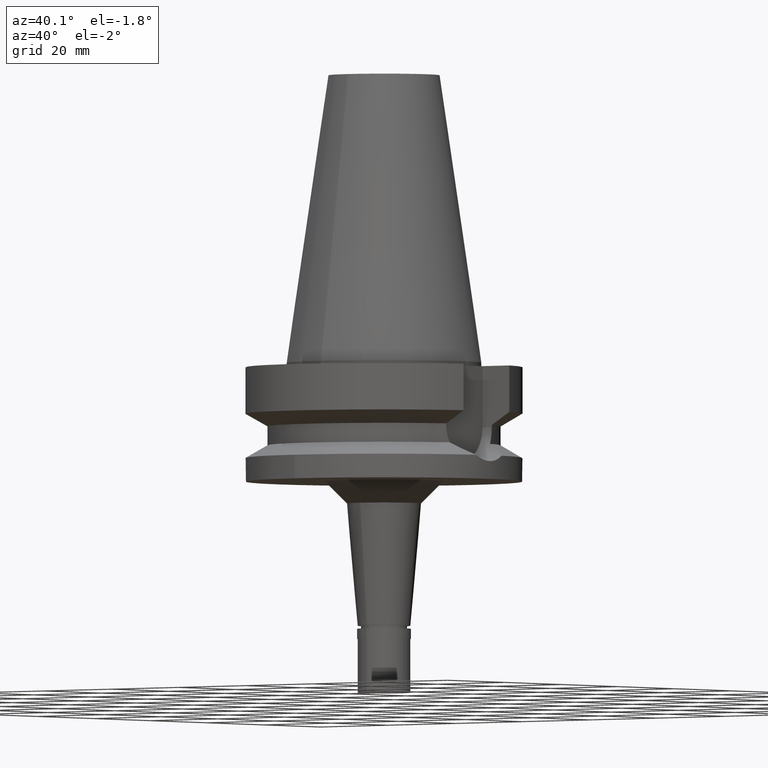
[diagram: clean part render]
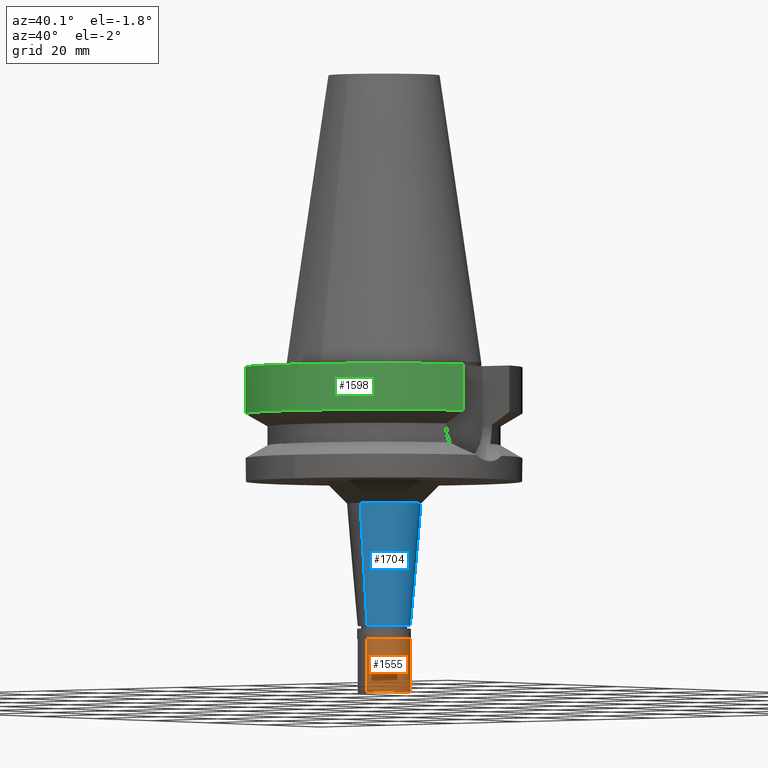
[diagram: same view with three faces highlighted in distinct colors, each labeled with its STEP entity id]
A machine part, auxiliary view with three faces highlighted in distinct colors.
Their STEP definitions:

[orange] entity #1555 — the highlighted cylindrical surface (edge-blend (fillet) strip) has radius 6 mm, axis along (0, 0, 1).
#41 = CARTESIAN_POINT ( 'NONE',  ( 0.0000000000000000000, 0.0000000000000000000, -14.50000000000000000 ) ) ;
#96 = CARTESIAN_POINT ( 'NONE',  ( 0.0000000000000000000, 6.000000000000000000, -2.299999999999999822 ) ) ;
#99 = CARTESIAN_POINT ( 'NONE',  ( 0.0000000000000000000, -6.000000000000000000, -2.299999999999999822 ) ) ;
#304 = LINE ( 'NONE', #2845, #1833 ) ;
#325 = ORIENTED_EDGE ( 'NONE', *, *, #2000, .F. ) ;
#484 = AXIS2_PLACEMENT_3D ( 'NONE', #500, #1415, #2334 ) ;
#500 = CARTESIAN_POINT ( 'NONE',  ( 0.0000000000000000000, 0.0000000000000000000, -15.22500000000000142 ) ) ;
#653 = CARTESIAN_POINT ( 'NONE',  ( 0.0000000000000000000, 6.000000000000000000, -2.299999999999999822 ) ) ;
#889 = LINE ( 'NONE', #653, #1883 ) ;
#908 = AXIS2_PLACEMENT_3D ( 'NONE', #946, #1396, #2339 ) ;
#946 = CARTESIAN_POINT ( 'NONE',  ( 0.0000000000000000000, 0.0000000000000000000, -2.299999999999999822 ) ) ;
#1101 = DIRECTION ( 'NONE',  ( 0.0000000000000000000, 0.0000000000000000000, -1.000000000000000000 ) ) ;
#1270 = DIRECTION ( 'NONE',  ( 0.0000000000000000000, 0.0000000000000000000, -1.000000000000000000 ) ) ;
#1287 = VERTEX_POINT ( 'NONE', #96 ) ;
#1302 = ORIENTED_EDGE ( 'NONE', *, *, #2499, .T. ) ;
#1396 = DIRECTION ( 'NONE',  ( 0.0000000000000000000, 0.0000000000000000000, -1.000000000000000000 ) ) ;
#1415 = DIRECTION ( 'NONE',  ( 0.0000000000000000000, 0.0000000000000000000, 1.000000000000000000 ) ) ;
#1462 = VERTEX_POINT ( 'NONE', #2240 ) ;
#1471 = EDGE_CURVE ( 'NONE', #1462, #2947, #1963, .T. ) ;
#1555 = ADVANCED_FACE ( 'NONE', ( #2567 ), #2953, .T. ) ;
#1833 = VECTOR ( 'NONE', #1270, 1000.000000000000000 ) ;
#1883 = VECTOR ( 'NONE', #1101, 1000.000000000000000 ) ;
#1914 = AXIS2_PLACEMENT_3D ( 'NONE', #41, #2255, #2039 ) ;
#1963 = CIRCLE ( 'NONE', #1914, 6.000000000000000000 ) ;
#2000 = EDGE_CURVE ( 'NONE', #1287, #2947, #889, .T. ) ;
#2035 = CIRCLE ( 'NONE', #908, 6.000000000000000000 ) ;
#2039 = DIRECTION ( 'NONE',  ( 0.0000000000000000000, -1.000000000000000000, 0.0000000000000000000 ) ) ;
#2069 = CARTESIAN_POINT ( 'NONE',  ( 0.0000000000000000000, 6.000000000000000000, -14.50000000000000000 ) ) ;
#2205 = EDGE_CURVE ( 'NONE', #1287, #2463, #2035, .T. ) ;
#2240 = CARTESIAN_POINT ( 'NONE',  ( 0.0000000000000000000, -6.000000000000000000, -14.50000000000000000 ) ) ;
#2255 = DIRECTION ( 'NONE',  ( 0.0000000000000000000, 0.0000000000000000000, 1.000000000000000000 ) ) ;
#2334 = DIRECTION ( 'NONE',  ( 0.0000000000000000000, 1.000000000000000000, 0.0000000000000000000 ) ) ;
#2339 = DIRECTION ( 'NONE',  ( 0.0000000000000000000, 1.000000000000000000, 0.0000000000000000000 ) ) ;
#2463 = VERTEX_POINT ( 'NONE', #99 ) ;
#2499 = EDGE_CURVE ( 'NONE', #2463, #1462, #304, .T. ) ;
#2567 = FACE_OUTER_BOUND ( 'NONE', #2986, .T. ) ;
#2723 = ORIENTED_EDGE ( 'NONE', *, *, #2205, .T. ) ;
#2791 = ORIENTED_EDGE ( 'NONE', *, *, #1471, .T. ) ;
#2845 = CARTESIAN_POINT ( 'NONE',  ( 0.0000000000000000000, -6.000000000000000000, -2.299999999999999822 ) ) ;
#2947 = VERTEX_POINT ( 'NONE', #2069 ) ;
#2953 = CYLINDRICAL_SURFACE ( 'NONE', #484, 6.000000000000000000 ) ;
#2986 = EDGE_LOOP ( 'NONE', ( #2723, #1302, #2791, #325 ) ) ;

[blue] entity #1704 — the highlighted conical surface has half-angle 5 deg.
#43 = EDGE_CURVE ( 'NONE', #638, #591, #1482, .T. ) ;
#149 = CARTESIAN_POINT ( 'NONE',  ( 0.0000000000000000000, -8.432184846020001956, -32.00000000000000000 ) ) ;
#270 = CARTESIAN_POINT ( 'NONE',  ( 0.0000000000000000000, 8.432184846020001956, -32.00000000000000000 ) ) ;
#277 = CARTESIAN_POINT ( 'NONE',  ( 0.0000000000000000000, -6.000000000000000000, -59.79999999999999716 ) ) ;
#296 = EDGE_CURVE ( 'NONE', #591, #1514, #1268, .T. ) ;
#415 = VECTOR ( 'NONE', #2603, 1000.000000000000114 ) ;
#483 = CARTESIAN_POINT ( 'NONE',  ( 0.0000000000000000000, 6.000000000000000000, -59.79999999999999716 ) ) ;
#517 = EDGE_LOOP ( 'NONE', ( #1346, #1606, #639, #1247 ) ) ;
#591 = VERTEX_POINT ( 'NONE', #277 ) ;
#638 = VERTEX_POINT ( 'NONE', #149 ) ;
#639 = ORIENTED_EDGE ( 'NONE', *, *, #296, .T. ) ;
#746 = CARTESIAN_POINT ( 'NONE',  ( 0.0000000000000000000, 0.0000000000000000000, -32.00000000000000000 ) ) ;
#876 = DIRECTION ( 'NONE',  ( 0.0000000000000000000, 0.0000000000000000000, 1.000000000000000000 ) ) ;
#911 = CARTESIAN_POINT ( 'NONE',  ( 0.0000000000000000000, 0.0000000000000000000, -59.79999999999999716 ) ) ;
#942 = VECTOR ( 'NONE', #2152, 1000.000000000000114 ) ;
#1142 = CONICAL_SURFACE ( 'NONE', #1437, 7.216092423010000978, 0.08726646259969973729 ) ;
#1168 = FACE_OUTER_BOUND ( 'NONE', #517, .T. ) ;
#1211 = EDGE_CURVE ( 'NONE', #1548, #1514, #1637, .T. ) ;
#1247 = ORIENTED_EDGE ( 'NONE', *, *, #1211, .F. ) ;
#1268 = CIRCLE ( 'NONE', #1467, 6.000000000000000000 ) ;
#1346 = ORIENTED_EDGE ( 'NONE', *, *, #1563, .F. ) ;
#1400 = AXIS2_PLACEMENT_3D ( 'NONE', #746, #1573, #1797 ) ;
#1437 = AXIS2_PLACEMENT_3D ( 'NONE', #2979, #1615, #2774 ) ;
#1467 = AXIS2_PLACEMENT_3D ( 'NONE', #911, #876, #1581 ) ;
#1482 = LINE ( 'NONE', #2398, #942 ) ;
#1514 = VERTEX_POINT ( 'NONE', #483 ) ;
#1548 = VERTEX_POINT ( 'NONE', #1641 ) ;
#1563 = EDGE_CURVE ( 'NONE', #638, #1548, #2796, .T. ) ;
#1573 = DIRECTION ( 'NONE',  ( 0.0000000000000000000, 0.0000000000000000000, 1.000000000000000000 ) ) ;
#1581 = DIRECTION ( 'NONE',  ( 0.0000000000000000000, -1.000000000000000000, 0.0000000000000000000 ) ) ;
#1606 = ORIENTED_EDGE ( 'NONE', *, *, #43, .T. ) ;
#1615 = DIRECTION ( 'NONE',  ( 0.0000000000000000000, 0.0000000000000000000, 1.000000000000000000 ) ) ;
#1637 = LINE ( 'NONE', #270, #415 ) ;
#1641 = CARTESIAN_POINT ( 'NONE',  ( 0.0000000000000000000, 8.432184846020001956, -32.00000000000000000 ) ) ;
#1704 = ADVANCED_FACE ( 'NONE', ( #1168 ), #1142, .T. ) ;
#1797 = DIRECTION ( 'NONE',  ( 0.0000000000000000000, -1.000000000000000000, 0.0000000000000000000 ) ) ;
#2152 = DIRECTION ( 'NONE',  ( 0.0000000000000000000, 0.08715574274766389740, -0.9961946980917451011 ) ) ;
#2398 = CARTESIAN_POINT ( 'NONE',  ( 0.0000000000000000000, -8.432184846020001956, -32.00000000000000000 ) ) ;
#2603 = DIRECTION ( 'NONE',  ( 0.0000000000000000000, -0.08715574274766389740, -0.9961946980917451011 ) ) ;
#2774 = DIRECTION ( 'NONE',  ( 0.0000000000000000000, 1.000000000000000000, 0.0000000000000000000 ) ) ;
#2796 = CIRCLE ( 'NONE', #1400, 8.432184846020001956 ) ;
#2979 = CARTESIAN_POINT ( 'NONE',  ( 0.0000000000000000000, 0.0000000000000000000, -45.90000000000000568 ) ) ;

[green] entity #1598 — the highlighted cylindrical surface (partial cylindrical patch) has radius 31.5 mm, axis along (0, 0, -1).
#58 = VECTOR ( 'NONE', #1526, 1000.000000000000114 ) ;
#242 = CARTESIAN_POINT ( 'NONE',  ( -30.45402272279000044, -8.050000000000000711, -1.000000000000000000 ) ) ;
#276 = CARTESIAN_POINT ( 'NONE',  ( 0.0000000000000000000, 2.109086717491999768E-14, 72.22000000000001307 ) ) ;
#411 = FACE_OUTER_BOUND ( 'NONE', #2551, .T. ) ;
#465 = ORIENTED_EDGE ( 'NONE', *, *, #2518, .T. ) ;
#572 = DIRECTION ( 'NONE',  ( 0.0000000000000000000, -1.000000000000000000, 0.0000000000000000000 ) ) ;
#814 = DIRECTION ( 'NONE',  ( 0.0000000000000000000, -1.000000000000000000, 0.0000000000000000000 ) ) ;
#956 = ORIENTED_EDGE ( 'NONE', *, *, #2692, .F. ) ;
#1051 = VERTEX_POINT ( 'NONE', #242 ) ;
#1114 = AXIS2_PLACEMENT_3D ( 'NONE', #1707, #2639, #572 ) ;
#1127 = ORIENTED_EDGE ( 'NONE', *, *, #1956, .T. ) ;
#1177 = VERTEX_POINT ( 'NONE', #1858 ) ;
#1223 = CARTESIAN_POINT ( 'NONE',  ( -30.45402291485000035, -8.049999273400000988, -11.56551219700000033 ) ) ;
#1319 = LINE ( 'NONE', #1335, #2848 ) ;
#1324 = CARTESIAN_POINT ( 'NONE',  ( -30.45402291485000035, -8.049999273400000988, -11.56551219700000033 ) ) ;
#1329 = CYLINDRICAL_SURFACE ( 'NONE', #2946, 31.50000000000000000 ) ;
#1335 = CARTESIAN_POINT ( 'NONE',  ( 30.45402272279000044, -8.050000000000000711, -1.000000000000000000 ) ) ;
#1431 = DIRECTION ( 'NONE',  ( 0.0000000000000000000, 0.0000000000000000000, -1.000000000000000000 ) ) ;
#1500 = AXIS2_PLACEMENT_3D ( 'NONE', #2831, #2178, #814 ) ;
#1526 = DIRECTION ( 'NONE',  ( 1.817833879379990199E-08, -6.877086185949961743E-08, 0.9999999999999974465 ) ) ;
#1598 = ADVANCED_FACE ( 'NONE', ( #411 ), #1329, .T. ) ;
#1688 = CIRCLE ( 'NONE', #1500, 31.50000000000000000 ) ;
#1707 = CARTESIAN_POINT ( 'NONE',  ( 0.0000000000000000000, 2.109086717491999768E-14, -1.000000000000000000 ) ) ;
#1725 = VERTEX_POINT ( 'NONE', #2498 ) ;
#1763 = VERTEX_POINT ( 'NONE', #1324 ) ;
#1858 = CARTESIAN_POINT ( 'NONE',  ( 30.45402272279000044, -8.050000000000000711, -1.000000000000000000 ) ) ;
#1870 = EDGE_CURVE ( 'NONE', #1763, #1051, #2887, .T. ) ;
#1956 = EDGE_CURVE ( 'NONE', #1177, #1051, #2415, .T. ) ;
#2178 = DIRECTION ( 'NONE',  ( 0.0000000000000000000, 0.0000000000000000000, 1.000000000000000000 ) ) ;
#2347 = DIRECTION ( 'NONE',  ( 0.0000000000000000000, -1.000000000000000000, 0.0000000000000000000 ) ) ;
#2415 = CIRCLE ( 'NONE', #1114, 31.50000000000000000 ) ;
#2498 = CARTESIAN_POINT ( 'NONE',  ( 30.45402272279000044, -8.049999999999000622, -11.56550565266999975 ) ) ;
#2518 = EDGE_CURVE ( 'NONE', #1763, #1725, #1688, .T. ) ;
#2533 = ORIENTED_EDGE ( 'NONE', *, *, #1870, .F. ) ;
#2551 = EDGE_LOOP ( 'NONE', ( #2533, #465, #956, #1127 ) ) ;
#2639 = DIRECTION ( 'NONE',  ( 0.0000000000000000000, 0.0000000000000000000, -1.000000000000000000 ) ) ;
#2692 = EDGE_CURVE ( 'NONE', #1177, #1725, #1319, .T. ) ;
#2831 = CARTESIAN_POINT ( 'NONE',  ( 0.0000000000000000000, 1.065333950388000029E-14, -11.56550565266999975 ) ) ;
#2848 = VECTOR ( 'NONE', #2906, 999.9999999999998863 ) ;
#2887 = LINE ( 'NONE', #1223, #58 ) ;
#2906 = DIRECTION ( 'NONE',  ( -1.039241053341018312E-07, -3.931556201794071383E-07, -0.9999999999999173994 ) ) ;
#2946 = AXIS2_PLACEMENT_3D ( 'NONE', #276, #1431, #2347 ) ;